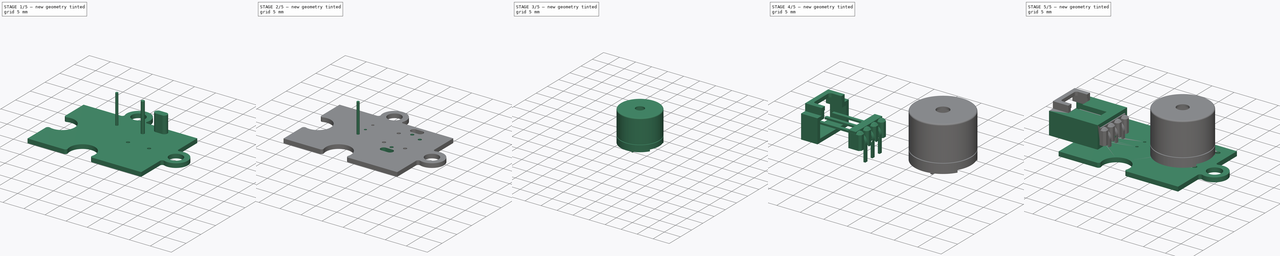
[diagram: build sequence overview — one tinted view per stage of 5, left to right]
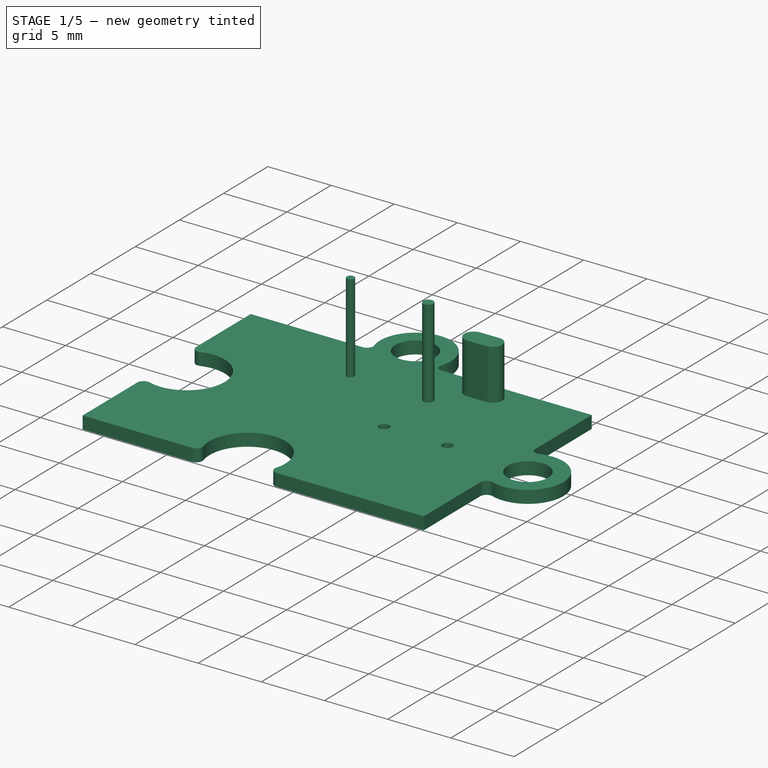
[diagram: stage 1 of 5 — iso view after this stage's code; geometry added in this stage tinted green]
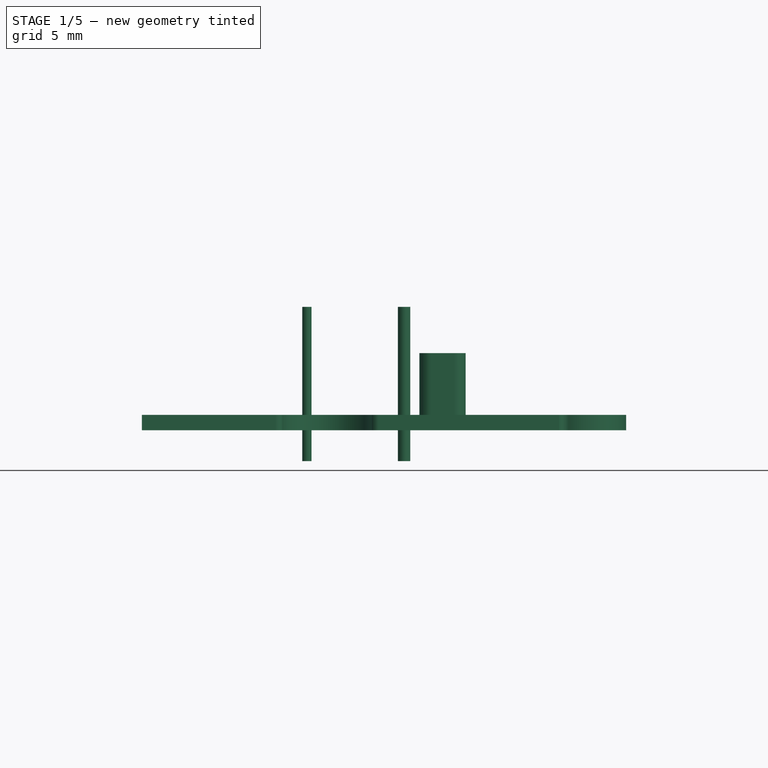
[diagram: stage 1 of 5 — front view after this stage's code; geometry added in this stage tinted green]
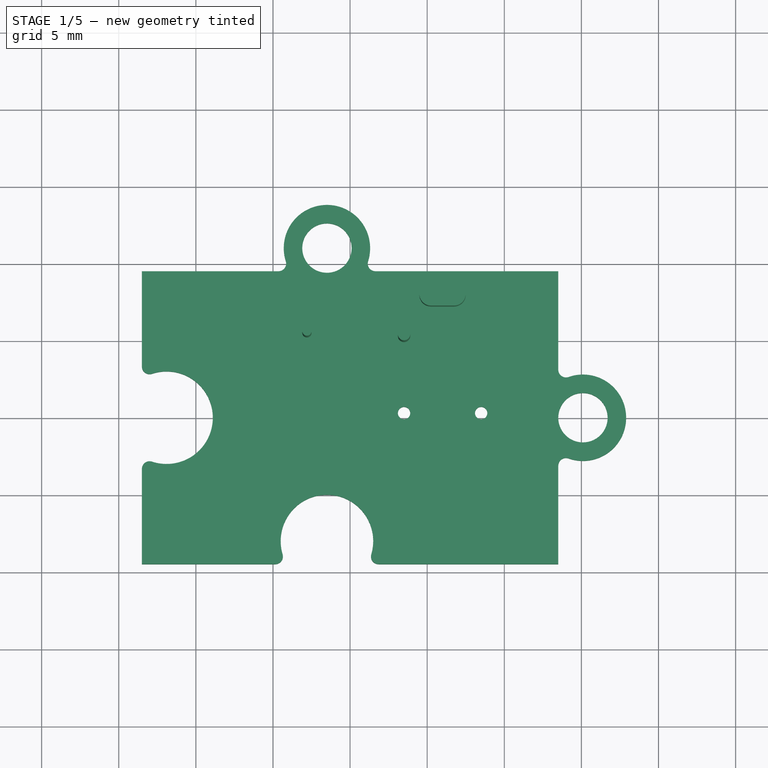
[diagram: stage 1 of 5 — top view after this stage's code; geometry added in this stage tinted green]
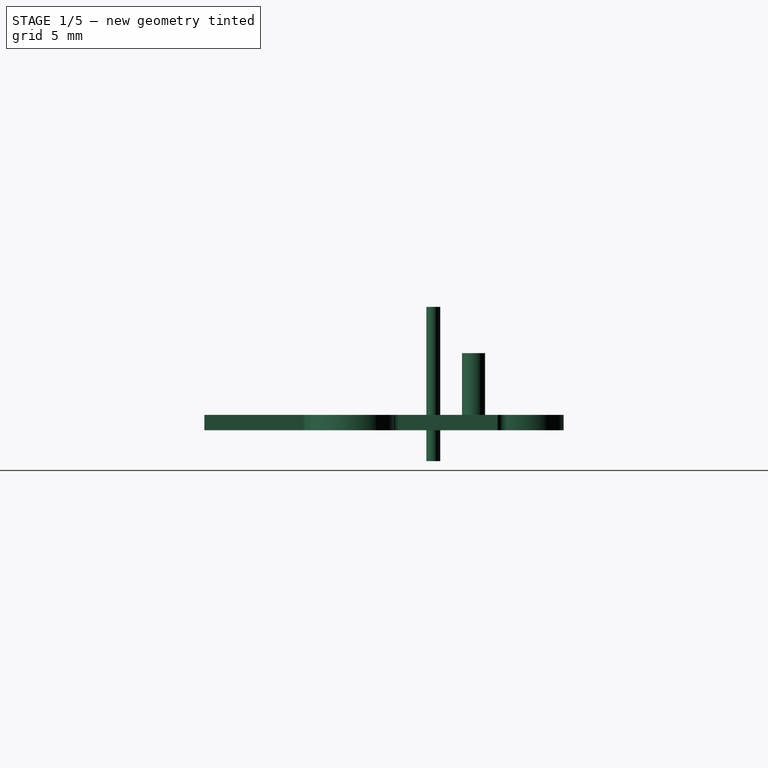
[diagram: stage 1 of 5 — right view after this stage's code; geometry added in this stage tinted green]
FCSTD DOCUMENT  (FreeCAD 0.14R3702 (Git))
Label: octopus-buzzer
License: CC-BY 3.0
LicenseURL: http://creativecommons.org/licenses/by/3.0/
objects: Part::Cut×19, Part::Cylinder×12, Part::Box×11, Sketcher::SketchObject×7, Part::Fillet×7, Part::MultiFuse×7, Part::Chamfer×5, PartDesign::Pad×3, PartDesign::Revolution×2, Part::Compound×2, Part::Thickness×1, Part::Sweep×1, Part::FeaturePython×1
note: 83 computed .brp shape members not serialized (recipe doc carries the construction recipe); baked Part::Feature solids carry a one-line shape summary decoded from their .brp

FEATURE [Sketcher::SketchObject] Sketch
  sketch-geometry (14):
    g0: LineSegment StartX=-13.5 StartY=9.5 StartZ=0 EndX=-3.86432 EndY=9.5 EndZ=0
    g1: LineSegment StartX=13.5 StartY=9.5 StartZ=0 EndX=13.5 EndY=2.29783 EndZ=0
    g2: LineSegment StartX=13.5 StartY=-9.5 StartZ=0 EndX=1.09808 EndY=-9.5 EndZ=0
    g3: LineSegment StartX=-13.5 StartY=-9.5 StartZ=0 EndX=-13.5 EndY=-2.53772 EndZ=0
    g4: Circle CenterX=-1.5 CenterY=11 CenterZ=0 NormalX=0 NormalY=0 NormalZ=1 Radius=1.6
    g5: ArcOfCircle CenterX=-1.5 CenterY=11 CenterZ=0 NormalX=0 NormalY=0 NormalZ=1 Radius=2.8 StartAngle=5.71783 EndAngle=9.99013
    g6: LineSegment StartX=0.864318 StartY=9.5 StartZ=0 EndX=13.5 EndY=9.5 EndZ=0
    g7: Circle CenterX=15.1 CenterY=0 CenterZ=0 NormalX=0 NormalY=0 NormalZ=1 Radius=1.6
    g8: ArcOfCircle CenterX=15.1 CenterY=0 CenterZ=0 NormalX=0 NormalY=0 NormalZ=1 Radius=2.8 StartAngle=4.10414 EndAngle=8.46223
    g9: LineSegment StartX=13.5 StartY=-2.29783 StartZ=0 EndX=13.5 EndY=-9.5 EndZ=0
    g10: ArcOfCircle CenterX=-1.5 CenterY=-8 CenterZ=0 NormalX=0 NormalY=0 NormalZ=1 Radius=3 StartAngle=5.75959 EndAngle=9.94838
    g11: LineSegment StartX=-4.09808 StartY=-9.5 StartZ=0 EndX=-13.5 EndY=-9.5 EndZ=0
    g12: ArcOfCircle CenterX=-11.9 CenterY=0 CenterZ=0 NormalX=0 NormalY=0 NormalZ=1 Radius=3 StartAngle=4.14985 EndAngle=8.41652
    g13: LineSegment StartX=-13.5 StartY=2.53772 StartZ=0 EndX=-13.5 EndY=9.5 EndZ=0
  constraints (40):
    c: Coincident(g6,g1)
    c: Coincident(g9,g2)
    c: Coincident(g11,g3)
    c: Coincident(g13,g0)
    c: Horizontal(g0)
    c: Horizontal(g2)
    c: Vertical(g1)
    c: Vertical(g3)
    c: Symmetric(g0,g9,g-1)
    c: Radius(g4) = 1.6
    c: DistanceX(g4,g6) = 15
    c: Coincident(g5,g4)
    c: Radius(g5) = 2.8
    c: Tangent(g0,g6)
    c: Coincident(g0,g5)
    c: PointOnObject(g6,g5)
    c: DistanceY(g-1,g4) = 11
    c: DistanceX(g-1,g8) = 15.1
    c: Equal(g7,g4)
    c: Equal(g8,g5)
    c: Tangent(g1,g9)
    c: Coincident(g8,g9)
    c: Coincident(g8,g1)
    c: Coincident(g5,g6)
    c: Coincident(g7,g8)
    c: PointOnObject(g7,g-1)
    c: Radius(g10) = 3
    c: DistanceX(g-1,g2) = 13.5
    c: Tangent(g2,g11)
    c: DistanceX(g10,g2) = 15
    c: DistanceY(g-1,g10) = -8
    c: Coincident(g10,g2)
    c: Coincident(g10,g11)
    c: DistanceX(g-1,g12) = -11.9
    c: Radius(g12) = 3
    c: PointOnObject(g12,g-1)
    c: DistanceY(g-1,g3) = -9.5
    c: Tangent(g3,g13)
    c: Coincident(g12,g3)
    c: Coincident(g12,g13)
FEATURE [PartDesign::Pad] Pad  label="Octopus_Base"
  Length = 1
  Length2 = 100
  Sketch = -> Sketch
  Type = 0
FEATURE [Part::Fillet] Fillet001
  Base = -> Pad
  Edges = 1 edges r=0.5: [Edge23]
FEATURE [Part::Fillet] Fillet005
  Base = -> Fillet001
  Edges = 1 edges r=0.5: [Edge35]
FEATURE [Part::Fillet] Fillet004
  Base = -> Fillet005
  Edges = 1 edges r=0.5: [Edge28]
FEATURE [Part::Fillet] Fillet003
  Base = -> Fillet004
  Edges = 1 edges r=0.5: [Edge25]
FEATURE [Part::Fillet] Fillet002
  Base = -> Fillet003
  Edges = 1 edges r=0.5: [Edge34]
FEATURE [Part::Fillet] Fillet  label="PCB_Base"
  Base = -> Fillet002
  Edges = 3 edges r=0.5: [Edge21,Edge31,Edge35]
FEATURE [Part::Cylinder] Cylinder  label="Cilindro002"
  Angle = 360
  Height = 10
  Placement = pos=(3.5,0.3,-2) rot=(0,0,1;0rad)
  Radius = 0.4
FEATURE [Part::Cylinder] Cylinder001  label="Cilindro003"
  Angle = 360
  Height = 10
  Placement = pos=(8.5,0.3,-2) rot=(0,0,1;0rad)
  Radius = 0.4
FEATURE [Part::Cylinder] Cylinder002  label="Cilindro004"
  Angle = 360
  Height = 10
  Placement = pos=(3.5,5.3,-2) rot=(0,0,1;0rad)
  Radius = 0.4
FEATURE [Part::Cut] Cut002
  Base = -> Fillet
  Tool = -> Cylinder
FEATURE [Part::Cut] Cut003
  Base = -> Cut002
  Tool = -> Cylinder001
FEATURE [Sketcher::SketchObject] Sketch001
  Placement = pos=(0,1.25,0) rot=(0,0,1;0rad)
  sketch-geometry (4):
    g0: ArcOfCircle CenterX=5.24484 CenterY=6.70621 CenterZ=0 NormalX=0 NormalY=0 NormalZ=1 Radius=0.75 StartAngle=1.5708 EndAngle=4.71239
    g1: ArcOfCircle CenterX=6.74484 CenterY=6.70621 CenterZ=0 NormalX=0 NormalY=0 NormalZ=1 Radius=0.75 StartAngle=4.71239 EndAngle=7.85398
    g2: LineSegment StartX=5.24484 StartY=5.95621 StartZ=0 EndX=6.74484 EndY=5.95621 EndZ=0
    g3: LineSegment StartX=5.24484 StartY=7.45621 StartZ=0 EndX=6.74484 EndY=7.45621 EndZ=0
  constraints (12):
    c: Tangent(g0,g2)
    c: Tangent(g0,g3)
    c: Tangent(g1,g2)
    c: Tangent(g1,g3)
    c: Coincident(g0,g3)
    c: Coincident(g0,g2)
    c: Coincident(g2,g1)
    c: Coincident(g3,g1)
    c: Horizontal(g2)
    c: Equal(g0,g1)
    c: Radius(g1) = 0.75
    c: DistanceX(g0,g1) = 1.5
FEATURE [PartDesign::Pad] Pad001
  Length = 5
  Length2 = 100
  Placement = pos=(0,1.25,0) rot=(0,0,1;0rad)
  Sketch = -> Sketch001
  Type = 0
FEATURE [Part::Cylinder] Cylinder006  label="Cilindro008"
  Angle = 360
  Height = 10
  Placement = pos=(-2.8,5.5,-2) rot=(0,0,1;0rad)
  Radius = 0.3
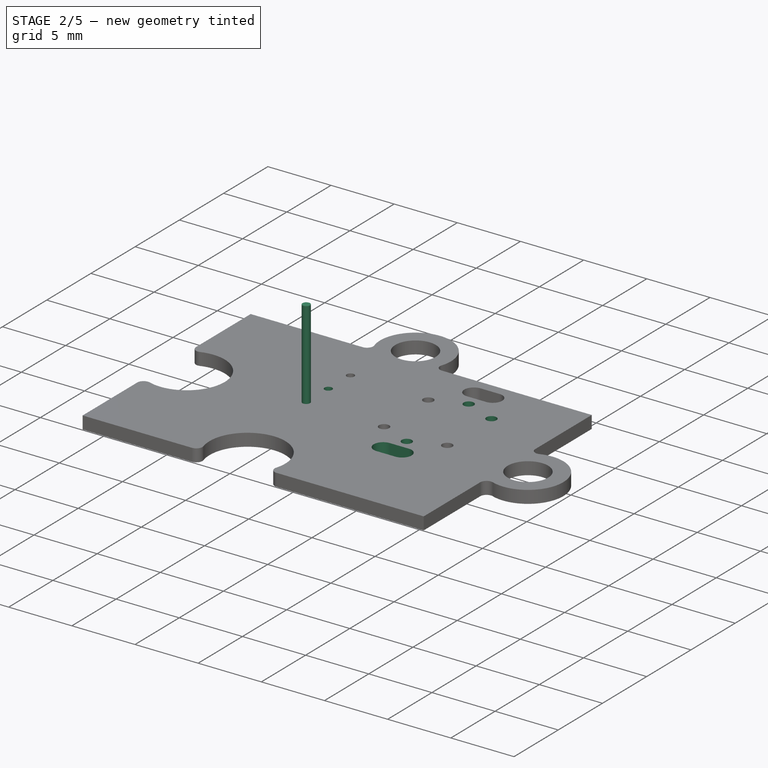
[diagram: stage 2 of 5 — iso view after this stage's code; geometry added in this stage tinted green]
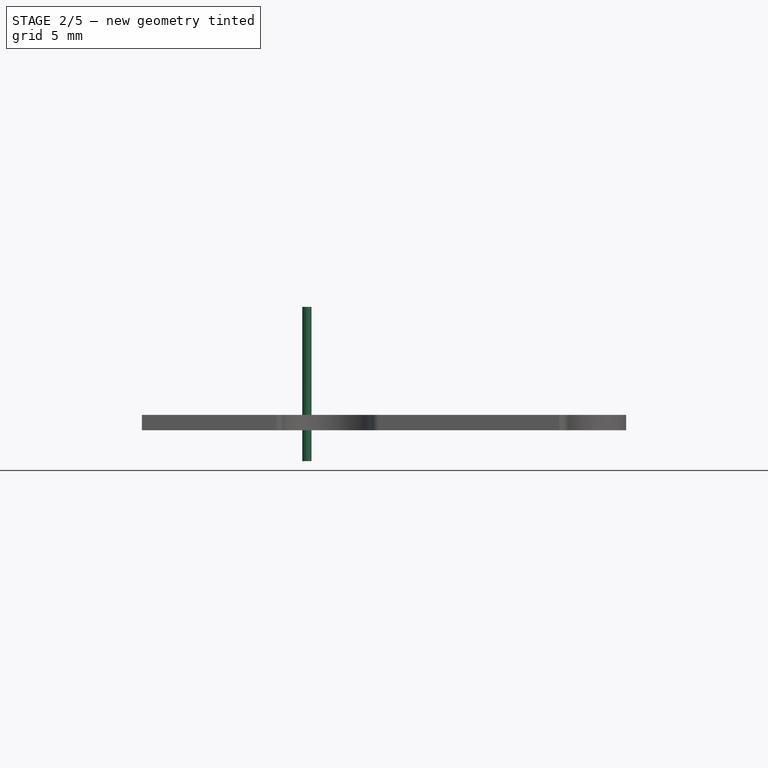
[diagram: stage 2 of 5 — front view after this stage's code; geometry added in this stage tinted green]
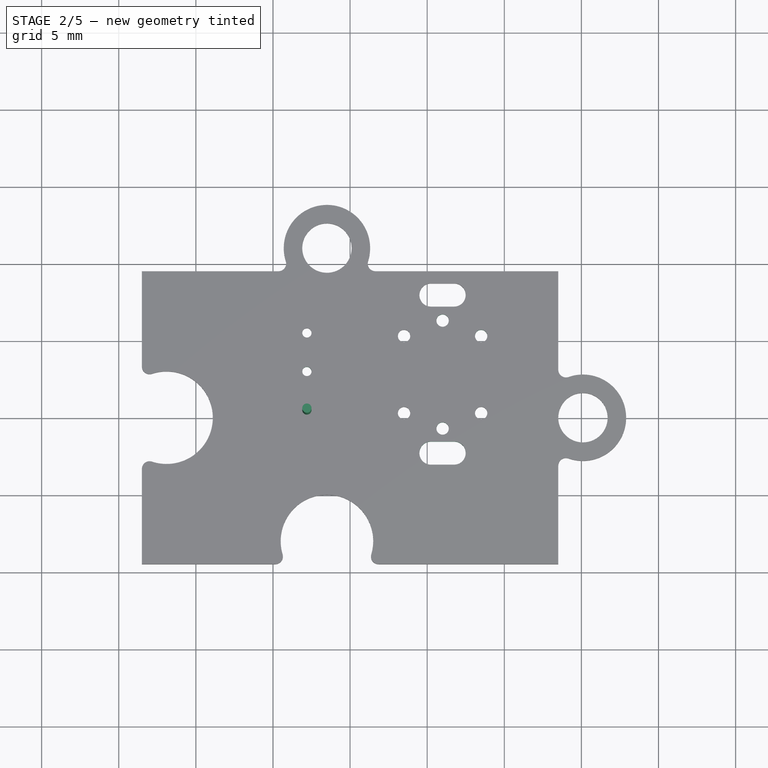
[diagram: stage 2 of 5 — top view after this stage's code; geometry added in this stage tinted green]
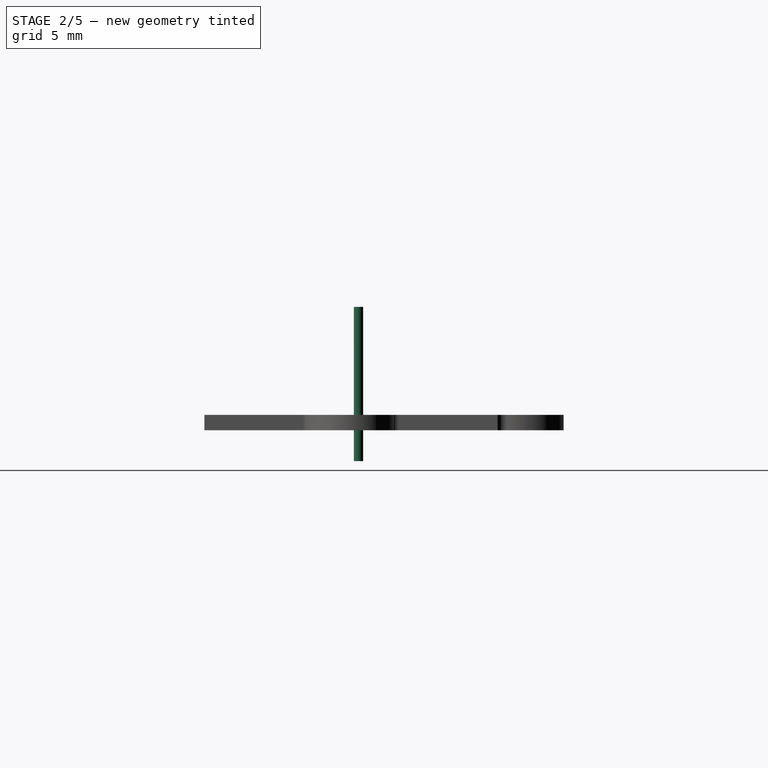
[diagram: stage 2 of 5 — right view after this stage's code; geometry added in this stage tinted green]
FEATURE [Part::Cylinder] Cylinder003  label="Cilindro005"
  Angle = 360
  Height = 10
  Placement = pos=(8.5,5.3,-2) rot=(0,0,1;0rad)
  Radius = 0.4
FEATURE [Part::Cylinder] Cylinder004  label="Cilindro006"
  Angle = 360
  Height = 10
  Placement = pos=(6,-0.7,-2) rot=(0,0,1;0rad)
  Radius = 0.4
FEATURE [Part::Cylinder] Cylinder005  label="Cilindro007"
  Angle = 360
  Height = 10
  Placement = pos=(6,6.3,-2) rot=(0,0,1;0rad)
  Radius = 0.4
FEATURE [Part::Cut] Cut004
  Base = -> Cut003
  Tool = -> Cylinder002
FEATURE [Part::Cut] Cut005
  Base = -> Cut004
  Tool = -> Cylinder003
FEATURE [Part::Cut] Cut006
  Base = -> Cut005
  Tool = -> Cylinder004
FEATURE [Part::Cut] Cut007
  Base = -> Cut006
  Tool = -> Cylinder005
FEATURE [Sketcher::SketchObject] Sketch002
  Placement = pos=(0,-9,0) rot=(0,0,1;0rad)
  sketch-geometry (4):
    g0: ArcOfCircle CenterX=5.24484 CenterY=6.70621 CenterZ=0 NormalX=0 NormalY=0 NormalZ=1 Radius=0.75 StartAngle=1.5708 EndAngle=4.71239
    g1: ArcOfCircle CenterX=6.74484 CenterY=6.70621 CenterZ=0 NormalX=0 NormalY=0 NormalZ=1 Radius=0.75 StartAngle=4.71239 EndAngle=7.85398
    g2: LineSegment StartX=5.24484 StartY=5.95621 StartZ=0 EndX=6.74484 EndY=5.95621 EndZ=0
    g3: LineSegment StartX=5.24484 StartY=7.45621 StartZ=0 EndX=6.74484 EndY=7.45621 EndZ=0
  constraints (12):
    c: Tangent(g0,g2)
    c: Tangent(g0,g3)
    c: Tangent(g1,g2)
    c: Tangent(g1,g3)
    c: Coincident(g0,g3)
    c: Coincident(g0,g2)
    c: Coincident(g2,g1)
    c: Coincident(g3,g1)
    c: Horizontal(g2)
    c: Equal(g0,g1)
    c: Radius(g1) = 0.75
    c: DistanceX(g0,g1) = 1.5
FEATURE [PartDesign::Pad] Pad002
  Length = 5
  Length2 = 100
  Placement = pos=(0,-9,0) rot=(0,0,1;0rad)
  Sketch = -> Sketch002
  Type = 0
FEATURE [Part::Cut] Cut008
  Base = -> Cut007
  Tool = -> Pad001
FEATURE [Part::Cut] Cut009
  Base = -> Cut008
  Tool = -> Pad002
FEATURE [Part::Cylinder] Cylinder007  label="Cilindro009"
  Angle = 360
  Height = 10
  Placement = pos=(-2.8,3,-2) rot=(0,0,1;0rad)
  Radius = 0.3
FEATURE [Part::Cylinder] Cylinder008  label="Cilindro010"
  Angle = 360
  Height = 10
  Placement = pos=(-2.8,0.5,-2) rot=(0,0,1;0rad)
  Radius = 0.3
FEATURE [Part::Cut] Cut010
  Base = -> Cut009
  Tool = -> Cylinder006
FEATURE [Part::Cut] Cut011
  Base = -> Cut010
  Tool = -> Cylinder007
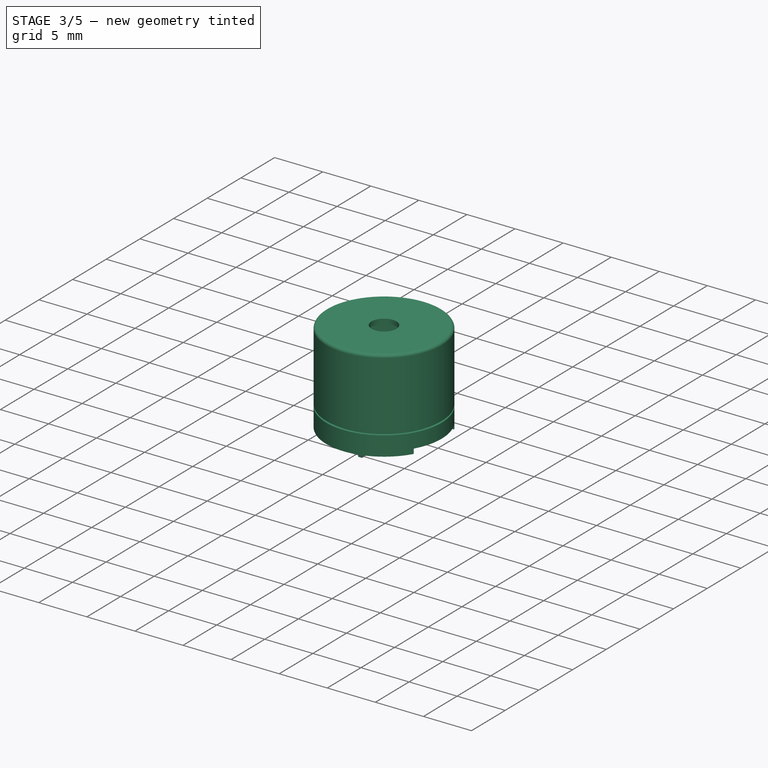
[diagram: stage 3 of 5 — iso view after this stage's code; geometry added in this stage tinted green]
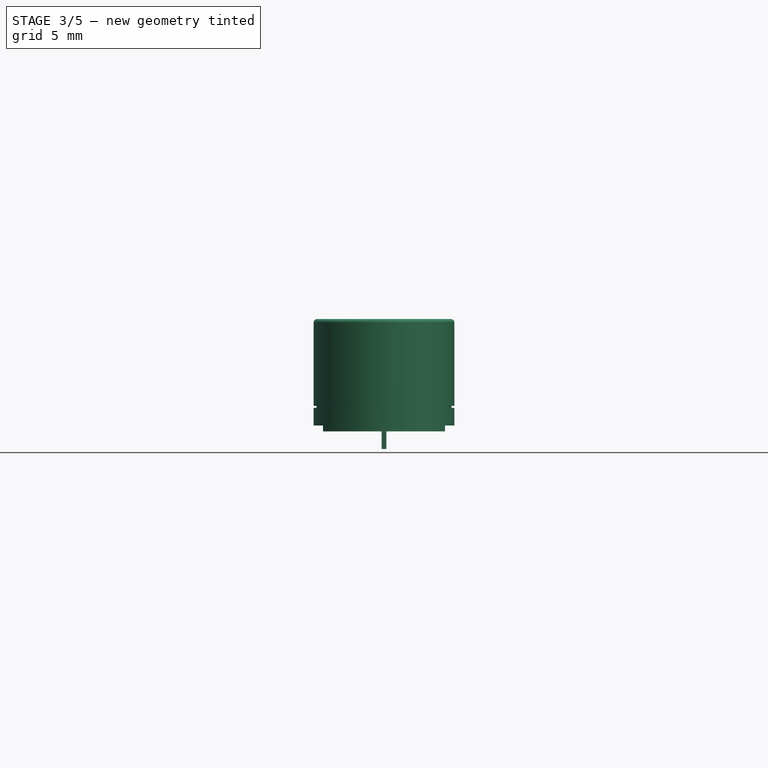
[diagram: stage 3 of 5 — front view after this stage's code; geometry added in this stage tinted green]
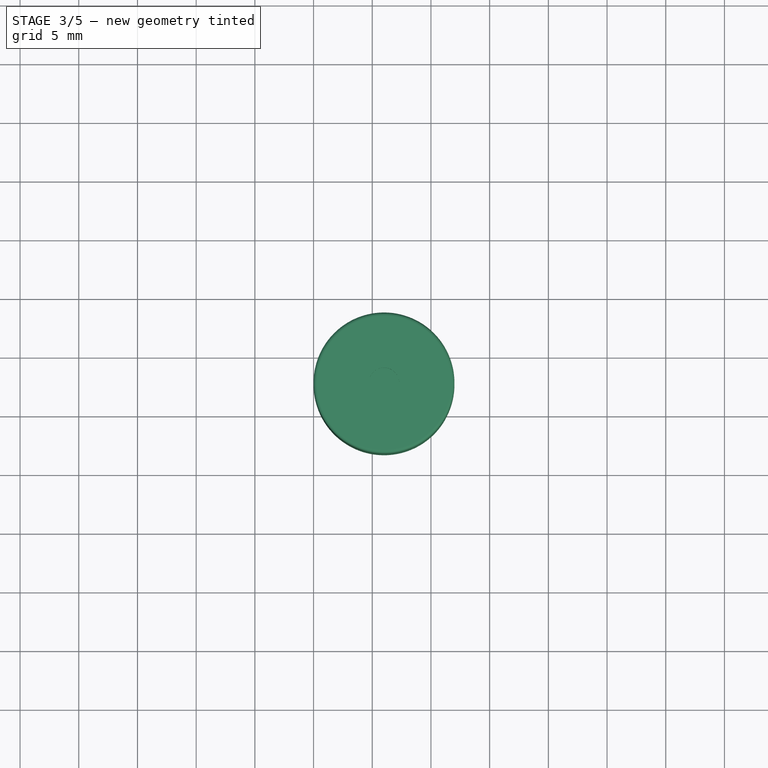
[diagram: stage 3 of 5 — top view after this stage's code; geometry added in this stage tinted green]
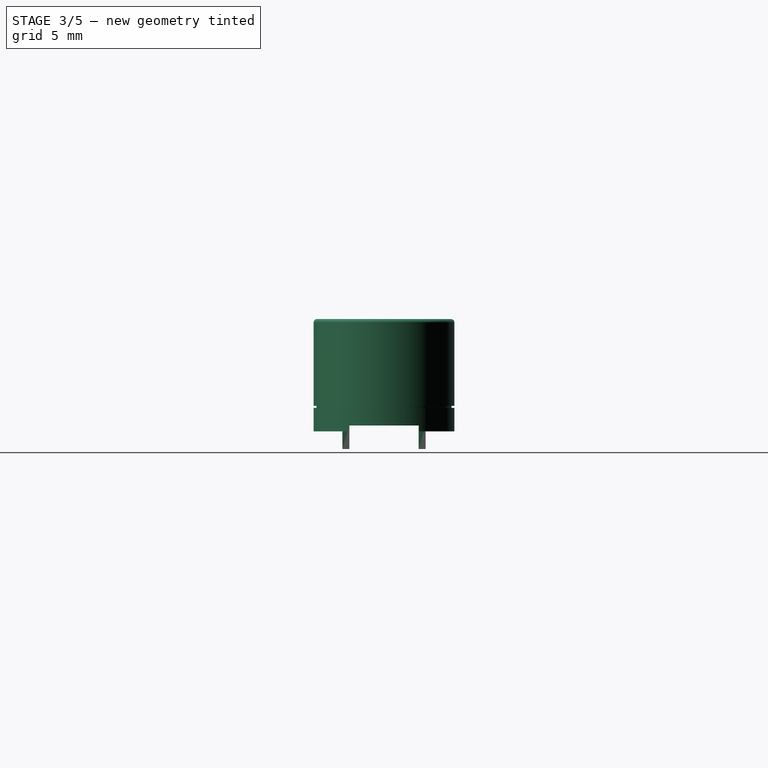
[diagram: stage 3 of 5 — right view after this stage's code; geometry added in this stage tinted green]
FEATURE [Part::Cut] Cut001
  Base = -> Cut011
  Tool = -> Cylinder008
FEATURE [Part::Box] Box  label="Cubo001"
  Height = 2.5
  Length = 0.6
  Placement = pos=(2.95,-0.2,-2) rot=(0,0,1;0rad)
  Width = 0.4
FEATURE [Sketcher::SketchObject] Sketch003
  Placement = pos=(0,0,0) rot=(1,0,0;1.5708rad)
  sketch-geometry (8):
    g0: LineSegment StartX=1.3 StartY=9.57124 StartZ=0 EndX=6 EndY=9.57124 EndZ=0
    g1: LineSegment StartX=6 StartY=9.57124 StartZ=0 EndX=6 EndY=2.17124 EndZ=0
    g2: LineSegment StartX=6 StartY=2.17124 StartZ=0 EndX=5.75 EndY=2.17124 EndZ=0
    g3: LineSegment StartX=5.75 StartY=2.17124 StartZ=0 EndX=5.75 EndY=2.57124 EndZ=0
    g4: LineSegment StartX=5.75 StartY=2.57124 StartZ=0 EndX=5.5 EndY=2.57124 EndZ=0
    g5: LineSegment StartX=5.5 StartY=2.57124 StartZ=0 EndX=5.5 EndY=9.07124 EndZ=0
    g6: LineSegment StartX=5.5 StartY=9.07124 StartZ=0 EndX=1.3 EndY=9.07124 EndZ=0
    g7: LineSegment StartX=1.3 StartY=9.07124 StartZ=0 EndX=1.3 EndY=9.57124 EndZ=0
  constraints (24):
    c: Horizontal(g0)
    c: Coincident(g0,g1)
    c: Vertical(g1)
    c: Coincident(g1,g2)
    c: Coincident(g2,g3)
    c: Vertical(g3)
    c: Coincident(g3,g4)
    c: Horizontal(g4)
    c: Coincident(g4,g5)
    c: Vertical(g5)
    c: Coincident(g5,g6)
    c: Horizontal(g6)
    c: Coincident(g6,g7)
    c: Coincident(g7,g0)
    c: DistanceY(g1) = -7.4
    c: Horizontal(g2)
    c: Vertical(g7)
    c: DistanceY(g3) = 0.4
    c: DistanceY(g7) = 0.5
    c: DistanceX(g0,g5) = -0.5
    c: DistanceX(g2,g1) = 0.25
    c: DistanceX(g-1,g1) = 6
    c: DistanceX(g-1,g0) = 1.3
    c: DistanceY(g-1,g1) = 2.17124
FEATURE [PartDesign::Revolution] Revolution
  Angle = 360
  Axis = (0,0,1)
  Base = (0,0,0)
  Placement = pos=(0,0,0) rot=(1,0,0;1.5708rad)
  ReferenceAxis = -> Sketch003 [V_Axis]
  Reversed = true
  Sketch = -> Sketch003
FEATURE [Part::Fillet] Fillet006  label="AroSuperior"
  Base = -> Revolution
  Edges = 1 edges r=0.3: [Edge2]
FEATURE [Sketcher::SketchObject] Sketch004
  Placement = pos=(0,0,0) rot=(1,0,0;1.5708rad)
  sketch-geometry (6):
    g0: LineSegment StartX=5.5 StartY=2.5 StartZ=0 EndX=5.5 EndY=0 EndZ=0
    g1: LineSegment StartX=5.5 StartY=0 StartZ=0 EndX=6 EndY=0 EndZ=0
    g2: LineSegment StartX=6 StartY=0 StartZ=0 EndX=6 EndY=2 EndZ=0
    g3: LineSegment StartX=6 StartY=2 StartZ=0 EndX=5.75 EndY=2 EndZ=0
    g4: LineSegment StartX=5.75 StartY=2 StartZ=0 EndX=5.75 EndY=2.5 EndZ=0
    g5: LineSegment StartX=5.75 StartY=2.5 StartZ=0 EndX=5.5 EndY=2.5 EndZ=0
  constraints (18):
    c: PointOnObject(g0,g-1)
    c: Vertical(g0)
    c: Coincident(g0,g1)
    c: PointOnObject(g1,g-1)
    c: Coincident(g1,g2)
    c: Vertical(g2)
    c: Coincident(g2,g3)
    c: Coincident(g3,g4)
    c: Vertical(g4)
    c: Coincident(g4,g5)
    c: Coincident(g5,g0)
    c: Horizontal(g5)
    c: Horizontal(g3)
    c: DistanceX(g1) = 0.5
    c: DistanceY(g0,g1) = -2.5
    c: DistanceY(g2,g1) = -2
    c: DistanceX(g5) = -0.25
    c: DistanceX(g-1,g0) = 5.5
FEATURE [PartDesign::Revolution] Revolution001
  Angle = 360
  Axis = (0,0,1)
  Base = (0,0,0)
  Placement = pos=(0,0,0) rot=(1,0,0;1.5708rad)
  ReferenceAxis = -> Sketch004 [V_Axis]
  Reversed = true
  Sketch = -> Sketch004
FEATURE [Part::Box] Box001  label="Cubo002"
  Height = 2.5
  Length = 0.6
  Placement = pos=(-3.55,-0.2,-2) rot=(0,0,1;0rad)
  Width = 0.4
FEATURE [Part::Cylinder] Cylinder011  label="Cilindro013"
  Angle = 360
  Height = 2
  Radius = 5.5
FEATURE [Part::MultiFuse] Fusion  label="Interior"
  Placement = pos=(0,0,0.5) rot=(0,0,1;0rad)
  Shapes = -> [Cylinder011,Box,Box001]
FEATURE [Part::Box] Box002  label="Cubo"
  Height = 0.5
  Length = 6
  Placement = pos=(-3,-7,0) rot=(0,0,1;0rad)
  Width = 15
FEATURE [Part::Cut] Cut013  label="AroInferior"
  Base = -> Revolution001
  Tool = -> Box002
FEATURE [Part::MultiFuse] Fusion004  label="BuzzerSensor"
  Placement = pos=(6,2.7,1) rot=(0,0,1;1.5708rad)
  Shapes = -> [Fillet006,Fusion,Cut013]
FEATURE [Part::Cut] Cut017  label="AroInferior001"
  Base = -> Revolution
  Placement = pos=(0,0,0) rot=(0,0,1;1.5708rad)
  Tool = -> Box
FEATURE [Part::MultiFuse] Fusion006  label="Interior001"
  Placement = pos=(0,0,0.5) rot=(0,0,1;1.5708rad)
  Shapes = -> [Cylinder005,Box001,Box002]
FEATURE [Part::Cut] Cut018  label="Tapa"
  Base = -> Cut001
  Tool = -> Pad001
FEATURE [Part::MultiFuse] Fusion005  label="Buzzer"
  Placement = pos=(6,2.7,1) rot=(0,0,1;0rad)
  Shapes = -> [Cut018,Fusion006,Cut017]
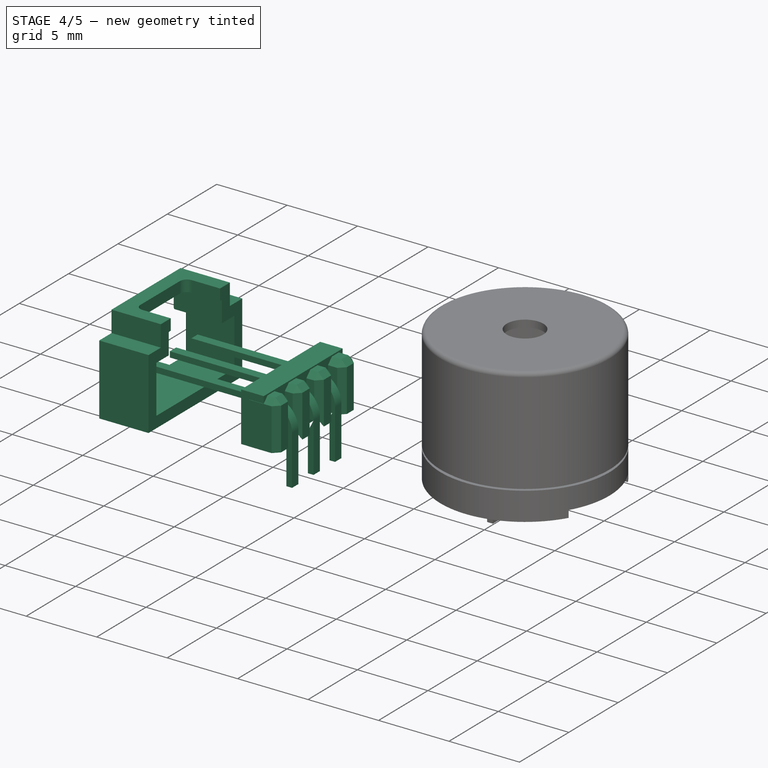
[diagram: stage 4 of 5 — iso view after this stage's code; geometry added in this stage tinted green]
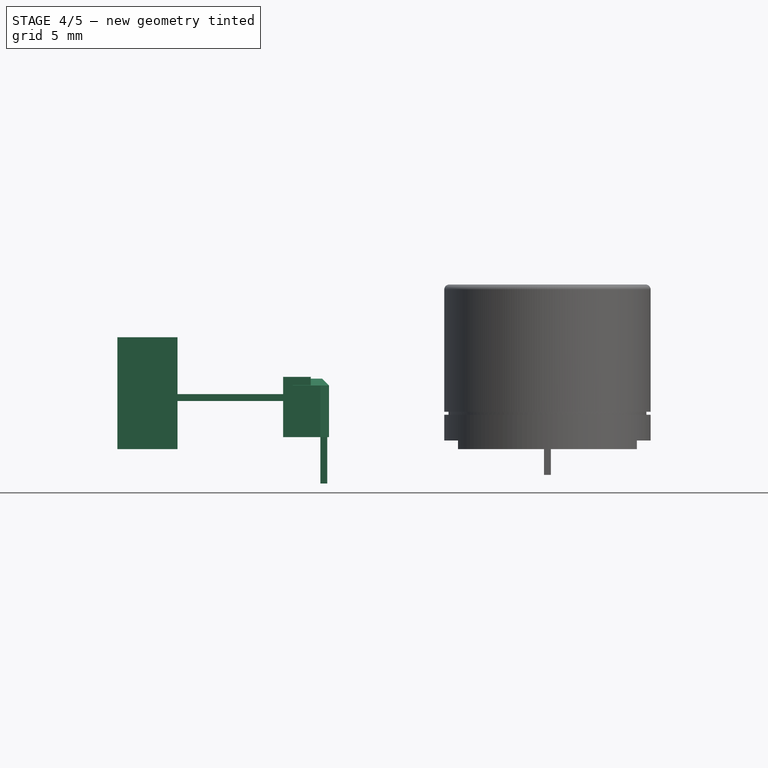
[diagram: stage 4 of 5 — front view after this stage's code; geometry added in this stage tinted green]
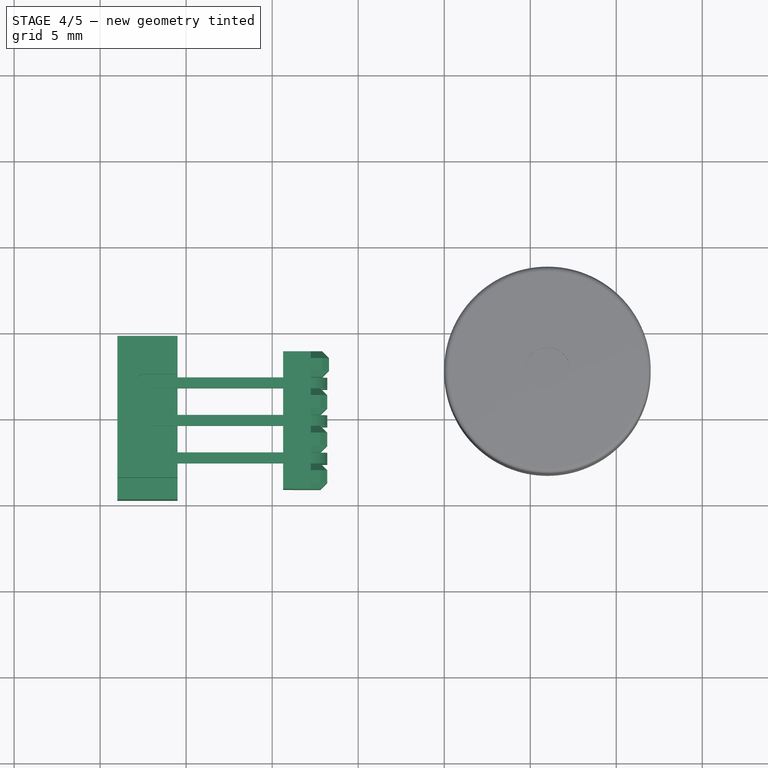
[diagram: stage 4 of 5 — top view after this stage's code; geometry added in this stage tinted green]
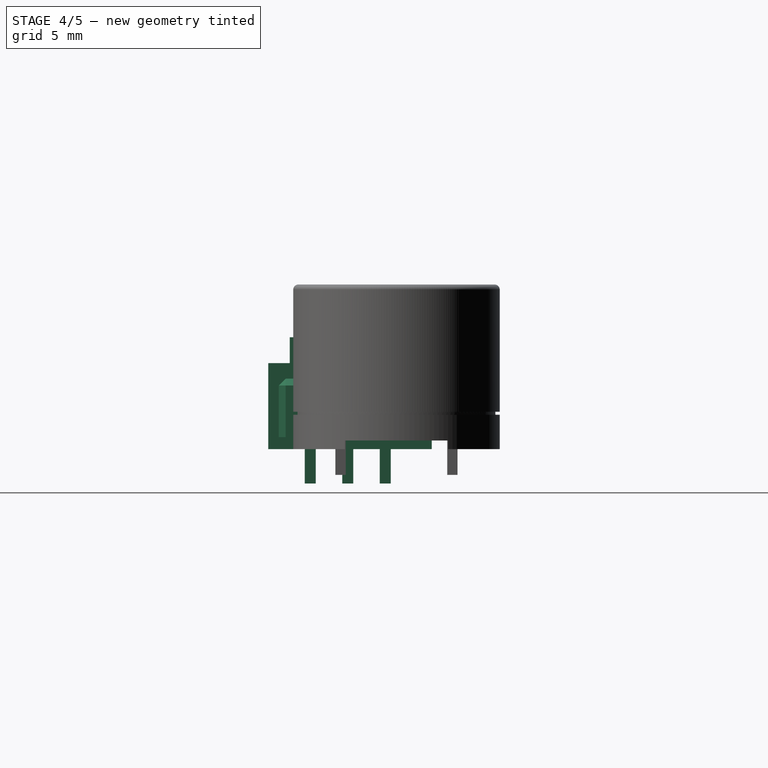
[diagram: stage 4 of 5 — right view after this stage's code; geometry added in this stage tinted green]
FEATURE [Part::Box] Box003  label="Cubo007"
  Height = 3.4
  Length = 1.5
  Placement = pos=(-1.14,-16.5,1.4) rot=(0,0,1;0rad)
  Width = 2
FEATURE [Part::Chamfer] Chamfer
  Base = -> Box003
  Edges = 5 edges r=0.4: [Edge2,Edge3,Edge6,Edge7,Edge12]
  Placement = pos=(5.78,14.7,0.3) rot=(0,0,1;0rad)
FEATURE [Part::Box] Box004  label="Cubo005"
  Height = 3.4
  Length = 1.54
  Placement = pos=(-2.93,-3.3,0.2) rot=(0,0,1;0rad)
  Width = 2
FEATURE [Part::Chamfer] Chamfer001
  Base = -> Box004
  Edges = 5 edges r=0.4: [Edge2,Edge3,Edge6,Edge7,Edge12]
  Placement = pos=(5.38,1.5,1.5) rot=(0,0,1;0rad)
FEATURE [Part::Box] Box007  label="Cubo008"
  Height = 3.5
  Length = 1.6
  Placement = pos=(-9.36,-4.13,1.7) rot=(0,0,1;0rad)
  Width = 8
FEATURE [Sketcher::SketchObject] Sketch005
  sketch-geometry (4):
    g0: LineSegment StartX=-0.32 StartY=0.2 StartZ=0 EndX=0.32 EndY=0.2 EndZ=0
    g1: LineSegment StartX=0.32 StartY=0.2 StartZ=0 EndX=0.32 EndY=-0.2 EndZ=0
    g2: LineSegment StartX=0.32 StartY=-0.2 StartZ=0 EndX=-0.32 EndY=-0.2 EndZ=0
    g3: LineSegment StartX=-0.32 StartY=-0.2 StartZ=0 EndX=-0.32 EndY=0.2 EndZ=0
  constraints (12):
    c: Coincident(g0,g1)
    c: Coincident(g1,g2)
    c: Coincident(g2,g3)
    c: Coincident(g3,g0)
    c: Horizontal(g0)
    c: Horizontal(g2)
    c: Vertical(g1)
    c: Vertical(g3)
    c: Symmetric(g0,g0,g-2)
    c: Symmetric(g0,g2,g-1)
    c: DistanceX(g0) = 0.64
    c: DistanceY(g3) = 0.4
FEATURE [Part::Cut] Cut016
FEATURE [Part::Box] Box009  label="Cubo004"
  Height = 3.4
  Length = 1.54
  Placement = pos=(-2.93,-3.3,0.2) rot=(0,0,1;0rad)
  Width = 2
FEATURE [Part::Chamfer] Chamfer002
  Base = -> Box009
  Edges = 5 edges r=0.4: [Edge2,Edge3,Edge6,Edge7,Edge12]
  Placement = pos=(3.2,1.5,1.5) rot=(0,0,1;0rad)
FEATURE [Sketcher::SketchObject] Sketch006
  Placement = pos=(0,0,0) rot=(0.57735,0.57735,0.57735;2.0944rad)
  sketch-geometry (3):
    g0: LineSegment StartX=0 StartY=0 StartZ=0 EndX=0 EndY=3.48702 EndZ=0
    g1: LineSegment StartX=-1.51298 StartY=5 StartZ=0 EndX=-10 EndY=5 EndZ=0
    g2: ArcOfCircle CenterX=-1.51298 CenterY=3.48702 CenterZ=0 NormalX=0 NormalY=0 NormalZ=1 Radius=1.51298 StartAngle=0 EndAngle=1.5708
  constraints (8):
    c: Coincident(g0,g-1)
    c: Vertical(g0)
    c: Horizontal(g1)
    c: Tangent(g1,g2)
    c: Tangent(g0,g2)
    c: DistanceY(g-1,g1) = 5
    c: DistanceX(g-1,g1) = -10
    c: Radius(g2) = 1.51298
FEATURE [Part::Box] Box010  label="Cubo006"
  Height = 3.4
  Length = 1.5
  Placement = pos=(-1.14,-16.5,1.4) rot=(0,0,1;0rad)
  Width = 2
FEATURE [Part::Chamfer] Chamfer003
  Base = -> Box010
  Edges = 5 edges r=0.4: [Edge2,Edge3,Edge6,Edge7,Edge12]
  Placement = pos=(-0.74,14.8,0.3) rot=(0,0,1;0rad)
FEATURE [Part::Chamfer] Chamfer004
  Base = -> Cut016
  Edges = 8 edges r=0.1: [Edge16,Edge17,Edge18,Edge19,Edge20,Edge21,Edge22,Edge23]
FEATURE [Part::Sweep] Sweep
  Frenet = false
  Placement = pos=(-0.05,0,-1) rot=(0,0,1;0rad)
  Sections = -> [Sketch005]
  Solid = true
  Spine = -> Sketch006 [Edge1,Edge2,Edge3]
  Transition = 1
FEATURE [Part::FeaturePython] Array  # Draft array (typed FeaturePython)
  Angle = 360
  ArrayType = 0
  Axis = (0,0,1)
  Base = -> Sweep
  Center = (0,0,0)
  IntervalX = (2.18,0,0)
  IntervalY = (0,1,0)
  IntervalZ = (0,0,1)
  NumberPolar = 1
  NumberX = 3
  NumberY = 1
  NumberZ = 1
FEATURE [Part::MultiFuse] Fusion002  label="Conectores1"
  Placement = pos=(-7,2,0) rot=(0,0,-1;1.5708rad)
  Shapes = -> [Array,Chamfer002,Chamfer,Chamfer001,Chamfer003]
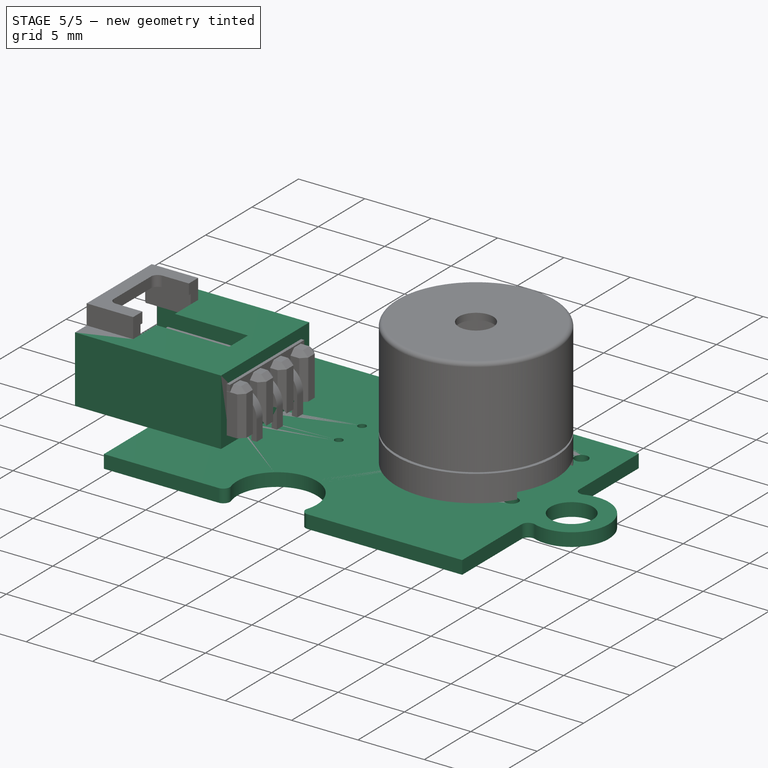
[diagram: stage 5 of 5 — iso view after this stage's code; geometry added in this stage tinted green]
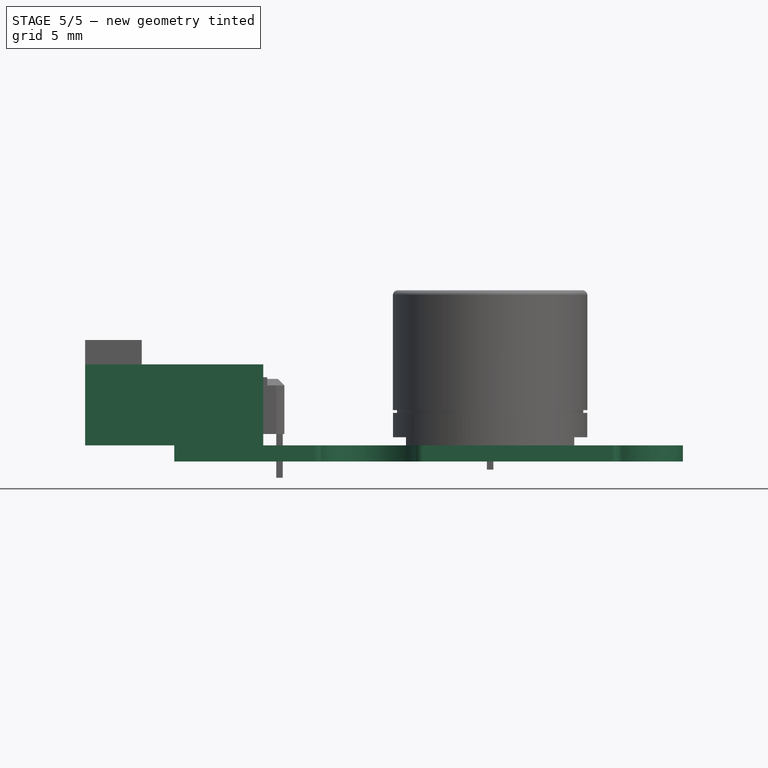
[diagram: stage 5 of 5 — front view after this stage's code; geometry added in this stage tinted green]
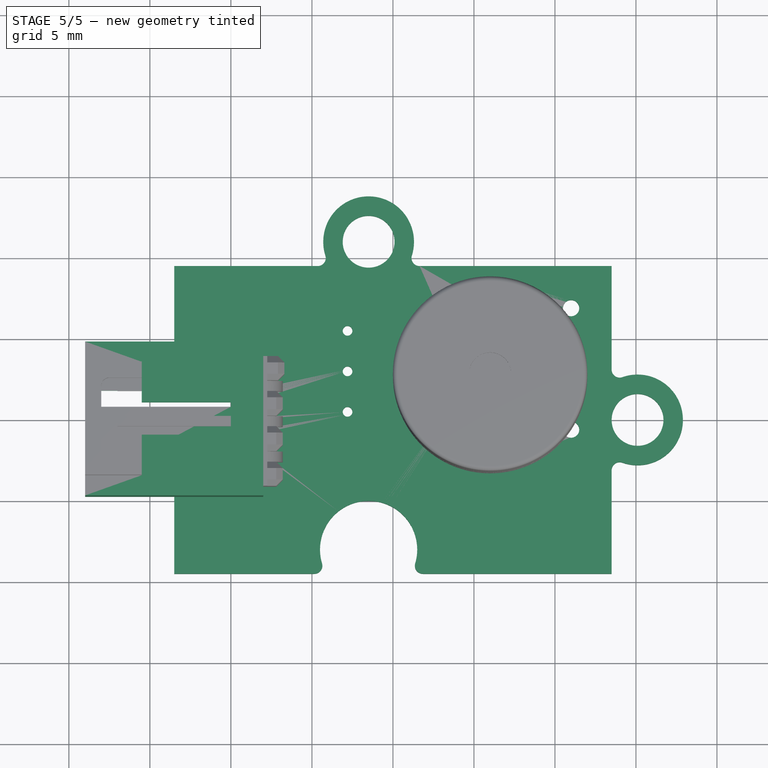
[diagram: stage 5 of 5 — top view after this stage's code; geometry added in this stage tinted green]
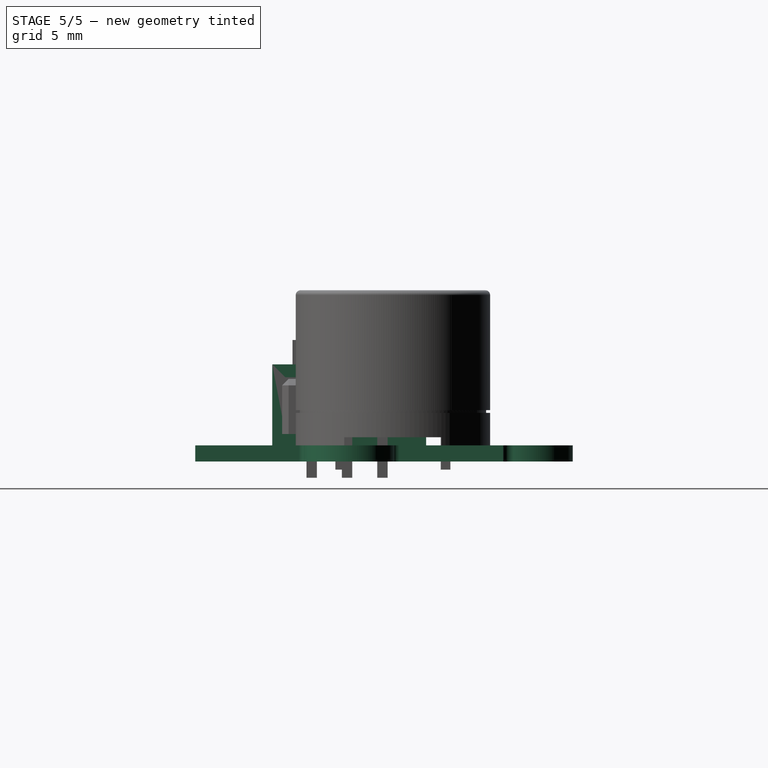
[diagram: stage 5 of 5 — right view after this stage's code; geometry added in this stage tinted green]
FEATURE [Part::Cylinder] Cylinder009  label="Cilindro011"
  Angle = 360
  Height = 10
  Placement = pos=(11,6.9,-2) rot=(0,0,1;0rad)
  Radius = 0.5
FEATURE [Part::Cylinder] Cylinder010  label="Cilindro012"
  Angle = 360
  Height = 10
  Placement = pos=(11,-0.6,-2) rot=(0,0,1;0rad)
  Radius = 0.5
FEATURE [Part::Cut] Cut012
  Base = -> Cut001
  Tool = -> Cylinder009
FEATURE [Part::Cut] Cut  label="BaseLED"
  Base = -> Cut012
  Tool = -> Cylinder010
FEATURE [Part::Box] Box005  label="Cubo013"
  Height = 10
  Length = 10
  Placement = pos=(-20,0.8,-7) rot=(0,0,1;0rad)
  Width = 1
FEATURE [Part::Box] Box006  label="Cubo014"
  Height = 3
  Length = 7
  Placement = pos=(-17,-1,5) rot=(0,0,1;0rad)
  Width = 2
FEATURE [Part::Box] Box008  label="Cubo015"
  Height = 5
  Length = 7.5
  Width = 9.5
FEATURE [Part::Thickness] Thickness
  Faces = -> Box008 [Face2,Face1]
  Intersection = false
  Join = 2
  Mode = 1
  Placement = pos=(-15.5,-4.75,1) rot=(0,0,1;0rad)
  SelfIntersection = false
  Value = -0.8
FEATURE [Part::Cut] Cut014
  Base = -> Thickness
  Tool = -> Box006
FEATURE [Part::MultiFuse] Fusion001  label="connector"
  Shapes = -> [Cut014,Chamfer004]
FEATURE [Part::Cut] Cut015  label="Connector-final"
  Base = -> Fusion001
  Tool = -> Box005
FEATURE [Part::MultiFuse] Fusion003  label="male-connectors"
  Shapes = -> [Fusion002,Box007,Sketch006]
FEATURE [Part::Compound] Compound  label="buzzer-src"
  Links = -> [Cut,Cut015,Fusion003,Fusion004,Fusion005]
FEATURE [Part::Compound] Compound001  label="buzzer-final"
  Links = -> [Cut,Cut015,Fusion003,Fusion004,Fusion005]
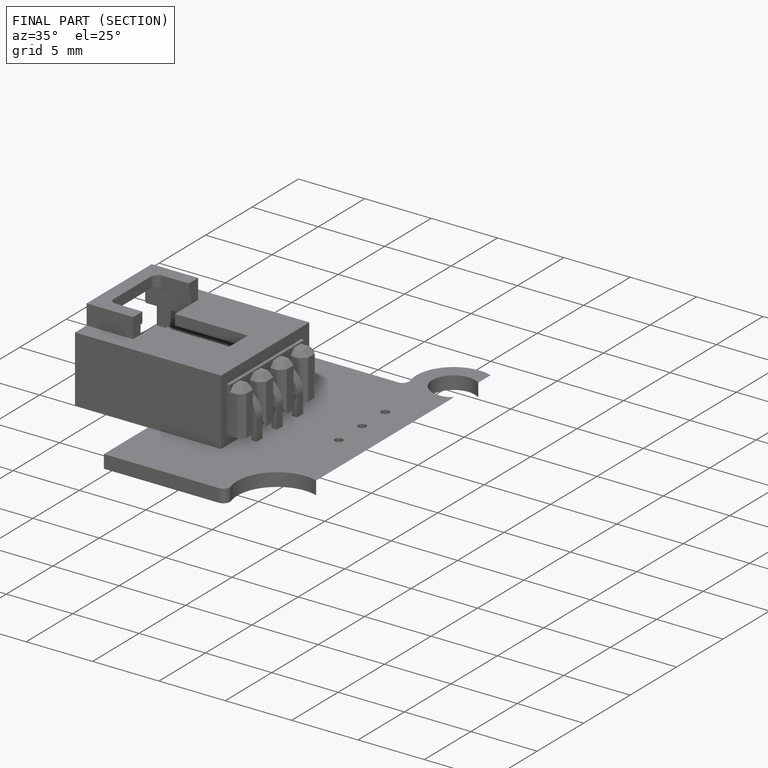
[diagram: finished part — half-section view (interior)]
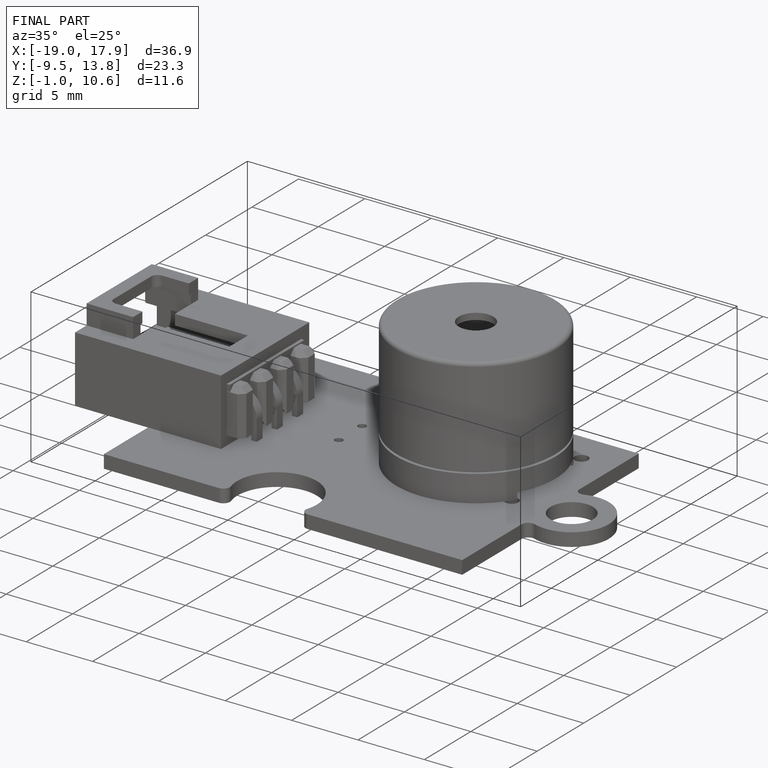
[diagram: finished part — iso view with bounding-box wireframe]
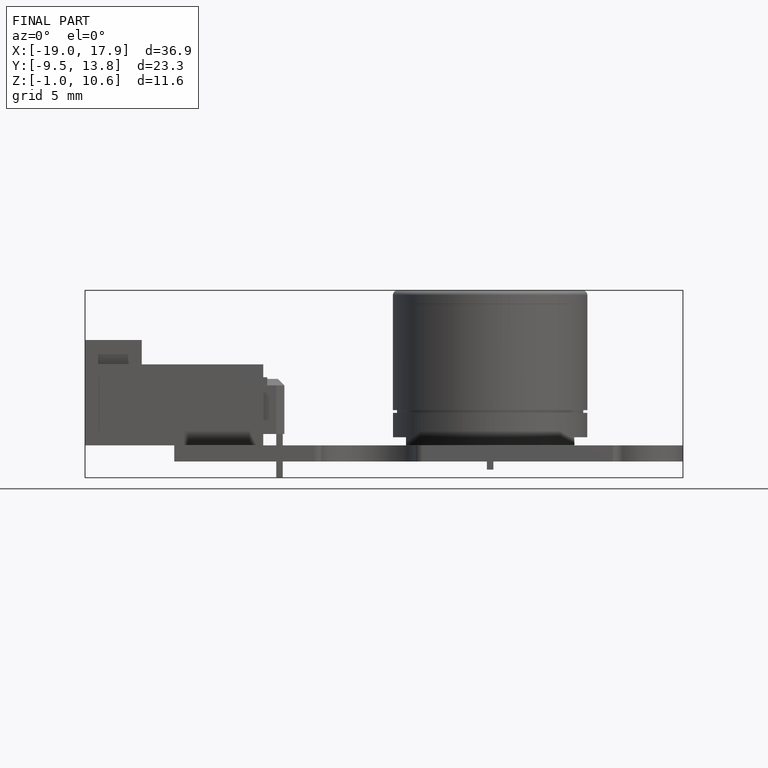
[diagram: finished part — front view with bounding-box wireframe]
